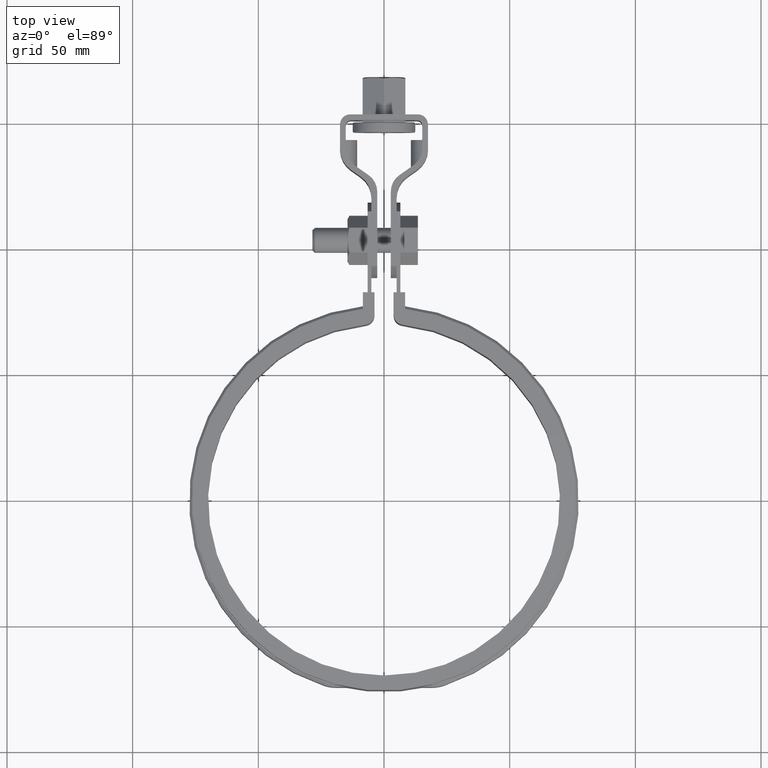
[diagram: clean part render]
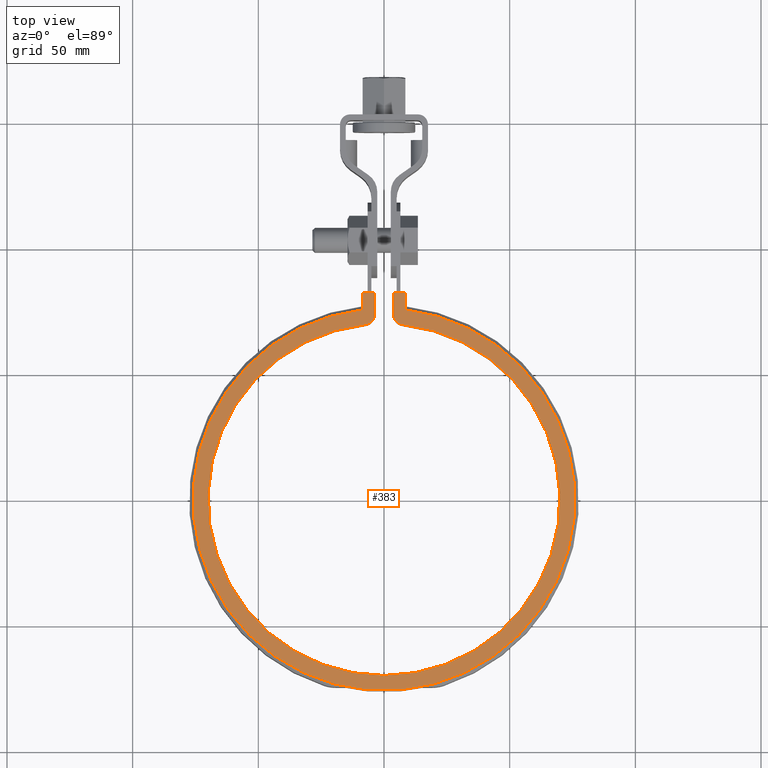
[diagram: same view with one face highlighted and labeled with its STEP entity id]
A machine part, top view. The second image highlights one B-rep face of the part: STEP entity #383.
In plain terms, the highlighted planar face has unit normal (0, 0, 1).
Its self-contained STEP definition (entity closure, byte-faithful):
#383 = ADVANCED_FACE( '', ( #635 ), #636, .T. );
#635 = FACE_OUTER_BOUND( '', #1762, .T. );
#636 = PLANE( '', #1763 );
#1762 = EDGE_LOOP( '', ( #4140, #4141, #4142, #4143, #4144, #4145, #4146, #4147, #4148, #4149 ) );
#1763 = AXIS2_PLACEMENT_3D( '', #4150, #4151, #4152 );
#4140 = ORIENTED_EDGE( '', *, *, #5100, .T. );
#4141 = ORIENTED_EDGE( '', *, *, #5056, .T. );
#4142 = ORIENTED_EDGE( '', *, *, #5197, .T. );
#4143 = ORIENTED_EDGE( '', *, *, #5188, .T. );
#4144 = ORIENTED_EDGE( '', *, *, #5161, .T. );
#4145 = ORIENTED_EDGE( '', *, *, #5217, .T. );
#4146 = ORIENTED_EDGE( '', *, *, #5219, .T. );
#4147 = ORIENTED_EDGE( '', *, *, #5220, .T. );
#4148 = ORIENTED_EDGE( '', *, *, #5167, .T. );
#4149 = ORIENTED_EDGE( '', *, *, #5164, .T. );
#4150 = CARTESIAN_POINT( '', ( 0.000000000000000, 0.000000000000000, 1.50000000000000 ) );
#4151 = DIRECTION( '', ( 0.000000000000000, 0.000000000000000, 1.00000000000000 ) );
#4152 = DIRECTION( '', ( 1.00000000000000, 0.000000000000000, 0.000000000000000 ) );
#5056 = EDGE_CURVE( '', #5608, #5609, #5610, .T. );
#5100 = EDGE_CURVE( '', #5692, #5608, #5693, .T. );
#5161 = EDGE_CURVE( '', #5802, #5800, #5803, .T. );
#5164 = EDGE_CURVE( '', #5806, #5692, #5807, .T. );
#5167 = EDGE_CURVE( '', #5811, #5806, #5812, .F. );
#5188 = EDGE_CURVE( '', #5845, #5802, #5846, .T. );
#5197 = EDGE_CURVE( '', #5609, #5845, #5858, .T. );
#5217 = EDGE_CURVE( '', #5800, #5883, #5884, .T. );
#5219 = EDGE_CURVE( '', #5883, #5886, #5887, .T. );
#5220 = EDGE_CURVE( '', #5886, #5811, #5888, .T. );
#5608 = VERTEX_POINT( '', #7358 );
#5609 = VERTEX_POINT( '', #7359 );
#5610 = LINE( '', #7360, #7361 );
#5692 = VERTEX_POINT( '', #7800 );
#5693 = LINE( '', #7801, #7802 );
#5800 = VERTEX_POINT( '', #8457 );
#5802 = VERTEX_POINT( '', #8460 );
#5803 = LINE( '', #8461, #8462 );
#5806 = VERTEX_POINT( '', #8469 );
#5807 = CIRCLE( '', #8470, 4.00000000000000 );
#5811 = VERTEX_POINT( '', #8475 );
#5812 = CIRCLE( '', #8476, 70.0000000000000 );
#5845 = VERTEX_POINT( '', #8529 );
#5846 = CIRCLE( '', #8530, 76.0000000000000 );
#5858 = LINE( '', #8550, #8551 );
#5883 = VERTEX_POINT( '', #8630 );
#5884 = LINE( '', #8631, #8632 );
#5886 = VERTEX_POINT( '', #8635 );
#5887 = LINE( '', #8636, #8637 );
#5888 = CIRCLE( '', #8638, 4.00000000000000 );
#7358 = CARTESIAN_POINT( '', ( -3.80000000000000, 82.5000000000000, 1.50000000000000 ) );
#7359 = CARTESIAN_POINT( '', ( -8.40000000000000, 82.5000000000000, 1.50000000000000 ) );
#7360 = CARTESIAN_POINT( '', ( 0.000000000000000, 82.5000000000000, 1.50000000000000 ) );
#7361 = VECTOR( '', #9485, 1000.00000000000 );
#7800 = CARTESIAN_POINT( '', ( -3.80000000000000, 73.5877707231304, 1.50000000000000 ) );
#7801 = CARTESIAN_POINT( '', ( -3.80000000000000, 2.28182857224642E-016, 1.50000000000000 ) );
#7802 = VECTOR( '', #9523, 1000.00000000000 );
#8457 = CARTESIAN_POINT( '', ( 8.39999999999999, 82.5000000000000, 1.50000000000000 ) );
#8460 = CARTESIAN_POINT( '', ( 8.39999999999999, 75.5343630409365, 1.50000000000000 ) );
#8461 = CARTESIAN_POINT( '', ( 8.39999999999998, -5.60449123007891E-016, 1.50000000000000 ) );
#8462 = VECTOR( '', #9596, 1000.00000000000 );
#8469 = CARTESIAN_POINT( '', ( -7.37837837837835, 69.6100533867449, 1.50000000000000 ) );
#8470 = AXIS2_PLACEMENT_3D( '', #9598, #9599, #9600 );
#8475 = CARTESIAN_POINT( '', ( 7.37837837837834, 69.6100533867449, 1.50000000000000 ) );
#8476 = AXIS2_PLACEMENT_3D( '', #9605, #9606, #9607 );
#8529 = CARTESIAN_POINT( '', ( -8.40000000000000, 75.5343630409365, 1.50000000000000 ) );
#8530 = AXIS2_PLACEMENT_3D( '', #9643, #9644, #9645 );
#8550 = CARTESIAN_POINT( '', ( -8.40000000000001, 5.60449123007892E-016, 1.50000000000000 ) );
#8551 = VECTOR( '', #9659, 1000.00000000000 );
#8630 = CARTESIAN_POINT( '', ( 3.80000000000000, 82.5000000000000, 1.50000000000000 ) );
#8631 = CARTESIAN_POINT( '', ( 0.000000000000000, 82.5000000000000, 1.50000000000000 ) );
#8632 = VECTOR( '', #9692, 1000.00000000000 );
#8635 = CARTESIAN_POINT( '', ( 3.80000000000000, 73.5877707231304, 1.50000000000000 ) );
#8636 = CARTESIAN_POINT( '', ( 3.80000000000000, -2.28182857224641E-016, 1.50000000000000 ) );
#8637 = VECTOR( '', #9694, 1000.00000000000 );
#8638 = AXIS2_PLACEMENT_3D( '', #9695, #9696, #9697 );
#9485 = DIRECTION( '', ( -1.00000000000000, 0.000000000000000, 0.000000000000000 ) );
#9523 = DIRECTION( '', ( 6.00481203222741E-017, 1.00000000000000, 0.000000000000000 ) );
#9596 = DIRECTION( '', ( 6.67201336914157E-017, 1.00000000000000, 0.000000000000000 ) );
#9598 = CARTESIAN_POINT( '', ( -7.80000000000000, 73.5877707231304, 1.50000000000000 ) );
#9599 = DIRECTION( '', ( 0.000000000000000, 0.000000000000000, 1.00000000000000 ) );
#9600 = DIRECTION( '', ( 1.00000000000000, 0.000000000000000, 0.000000000000000 ) );
#9605 = CARTESIAN_POINT( '', ( 0.000000000000000, 0.000000000000000, 1.50000000000000 ) );
#9606 = DIRECTION( '', ( 0.000000000000000, 0.000000000000000, 1.00000000000000 ) );
#9607 = DIRECTION( '', ( 1.00000000000000, 0.000000000000000, 0.000000000000000 ) );
#9643 = CARTESIAN_POINT( '', ( 0.000000000000000, 0.000000000000000, 1.50000000000000 ) );
#9644 = DIRECTION( '', ( 0.000000000000000, 0.000000000000000, 1.00000000000000 ) );
#9645 = DIRECTION( '', ( 1.00000000000000, 0.000000000000000, 0.000000000000000 ) );
#9659 = DIRECTION( '', ( -6.67201336914157E-017, -1.00000000000000, 0.000000000000000 ) );
#9692 = DIRECTION( '', ( -1.00000000000000, 0.000000000000000, 0.000000000000000 ) );
#9694 = DIRECTION( '', ( -6.00481203222741E-017, -1.00000000000000, 0.000000000000000 ) );
#9695 = CARTESIAN_POINT( '', ( 7.80000000000000, 73.5877707231303, 1.50000000000000 ) );
#9696 = DIRECTION( '', ( 0.000000000000000, 0.000000000000000, 1.00000000000000 ) );
#9697 = DIRECTION( '', ( 1.00000000000000, 0.000000000000000, 0.000000000000000 ) );